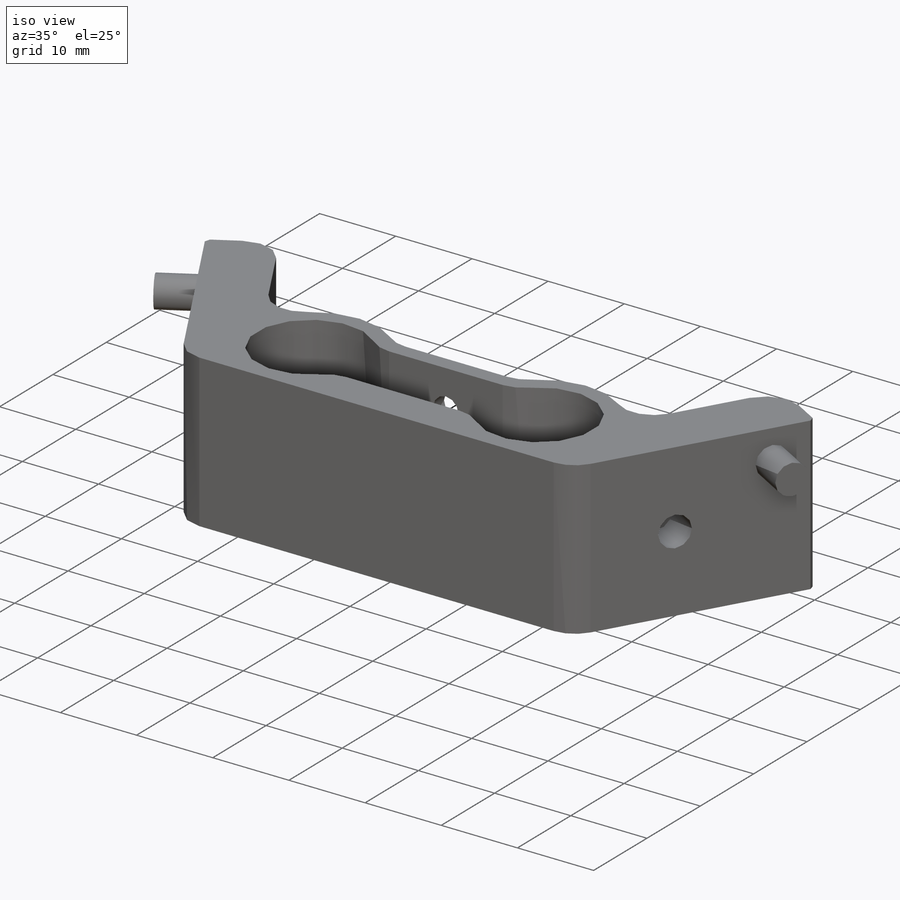
[diagram: iso view]
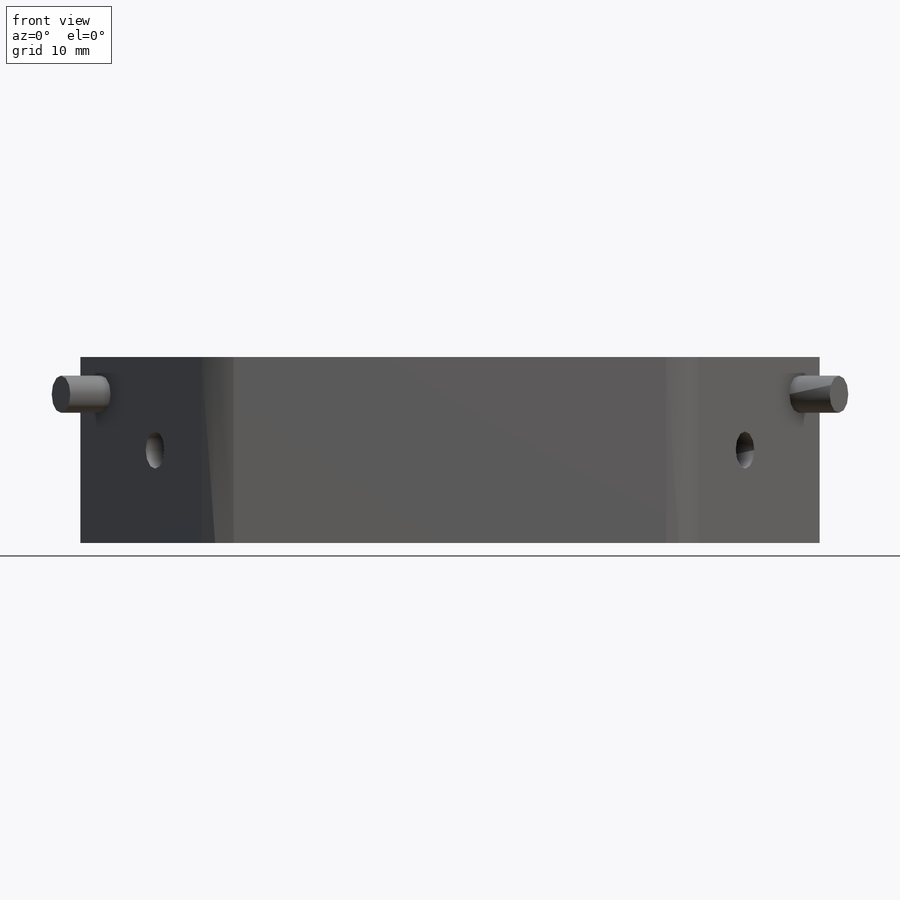
[diagram: front view]
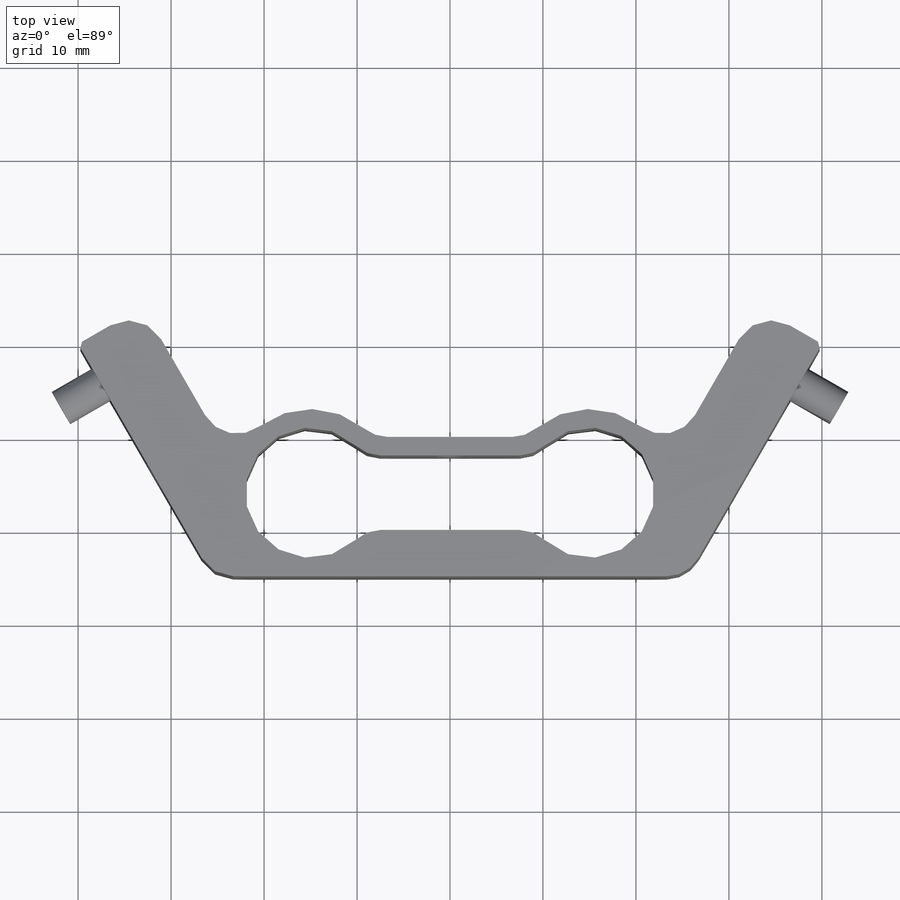
[diagram: top view]
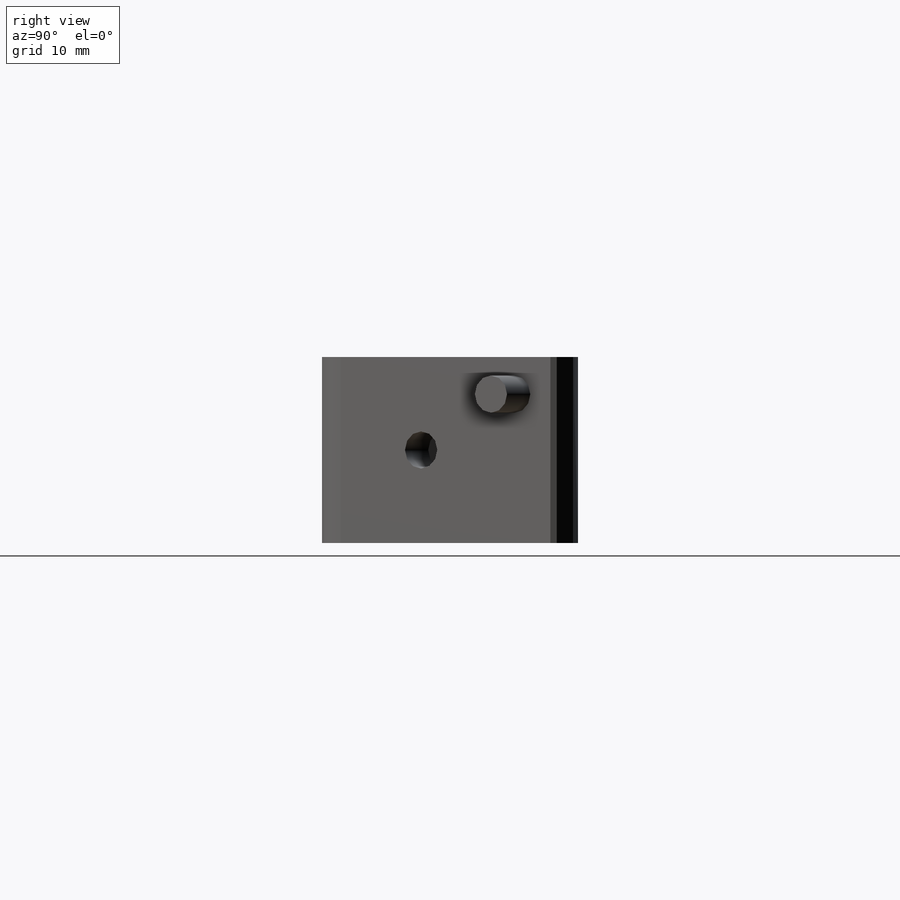
[diagram: right view]
SOLIDWORKS PART (.sldprt)
format: sldprt  version: not decoded by parser v0  size: 791,040 bytes
history: native  units: mm
features: sketch x10, cut_extrude x4, plane x3, extrude x3, material x1, fillet x1, chamfer x1, hole x1 (+8 scaffold rows collapsed)
feature tree (32):
  scaffold x8  (default folders/planes/origin — collapsed)
  material  "Сплав 2024"
  plane  "Спереди"
  plane  "Сверху"
  plane  "Справа"
  sketch  "Эскиз1"  dims[c1.D6=14.0mm c1.D7=14.0mm c1.D8=14.0mm c1.D15=14.0mm c1.D16=18.0mm c2.D15=18.0mm c2.D9=18.0mm c3.D15=14.0mm c3.D16=18.0mm c3.D9=14.0mm c4.D16=14.0mm c4.D17=18.0mm c5.D16=18.0mm c5.D15=9.0mm c6.D16=9.0mm c6.D1=35.0mm c6.D2=80.0mm c7.D1=80.0mm c7.D2=~27.604594mm c8.D2=30.0deg c8.D3=~27.816892mm c9.D3=30.0deg c9.D4=8.0mm c9.D5=8.0mm c9.D8=30.0mm c9.D9=18.0mm c9.D10=15.0mm c9.D11=9.0mm c9.D12=6.0mm c9.D13=25.0mm c9.D14=40.0mm c9.D15=~31.665069mm c9.D16=~63.393838mm c10.D15=~9.95212mm c10.D16=~12.752927mm c11.D15=~12.752927mm c11.D9=2.0mm c12.D15=2.0mm c12.D8=15.0mm c12.D9=2.0mm c12.D16=~31.665069mm c12.D17=~63.393838mm c13.D15=~15.612526mm c13.D17=15.0mm c13.D9=2.0mm c13.D12=2.0mm]
  extrude  "Бобышка-Вытянуть1"  Depth=20mm
  sketch  "Эскиз2"  dims[D1=25.0mm]
  cut_extrude  "Вырез-Вытянуть1"  [1 undecoded]
  sketch  "Эскиз3"  dims[D1=8.0mm D2=2.0mm]
  cut_extrude  "Вырез-Вытянуть2"  [1 undecoded]
  fillet  "Скругление1"  Radius=4mm
  chamfer  "Фаска1"  Distance=0.5mm Angle=45deg
  sketch  "Эскиз4"  dims[D1=5.0mm D2=5.0mm]
  hole  "Отверстие обработанное метчиком M4x0.71"  [1 undecoded]
  sketch  "Трехмерный эскиз1"
  sketch  "Эскиз5"  dims[hole-wizard template sketch: 47 standard entries collapsed; hole parameters kept: c15.Глубина сверла=13.5mm c15.D3=~14.816244mm c15.Угол заточки сверла=118.0deg]
  sketch  "Эскиз6"  dims[D4=4.0mm D1=20.0mm D2=~6.558112mm D3=10.0mm]
  cut_extrude  "Вырез-Вытянуть3"  Depth=5mm
  sketch  "Эскиз7"  dims[D2=4.0mm D1=10.0mm]
  cut_extrude  "Вырез-Вытянуть4"  Depth=5mm
  sketch  "Эскиз8"  dims[D3=4.0mm D1=5.0mm D2=4.0mm]
  extrude  "Бобышка-Вытянуть2"  Depth=5mm
  sketch  "Эскиз9"  dims[c1.D3=4.0mm c1.D1=4.0mm c1.D2=5.0mm c2.D1=4.0mm]
  extrude  "Бобышка-Вытянуть3"  Depth=5mm
decode coverage: 16 of 20 modeling features carry decoded parameters
note: ~ marks probable driven/reference dimensions
note: 3 parameter values undecoded
summary: no parameter record found for 3 features
note: suppression state not decoded; provenance and decode notes live in map.json
